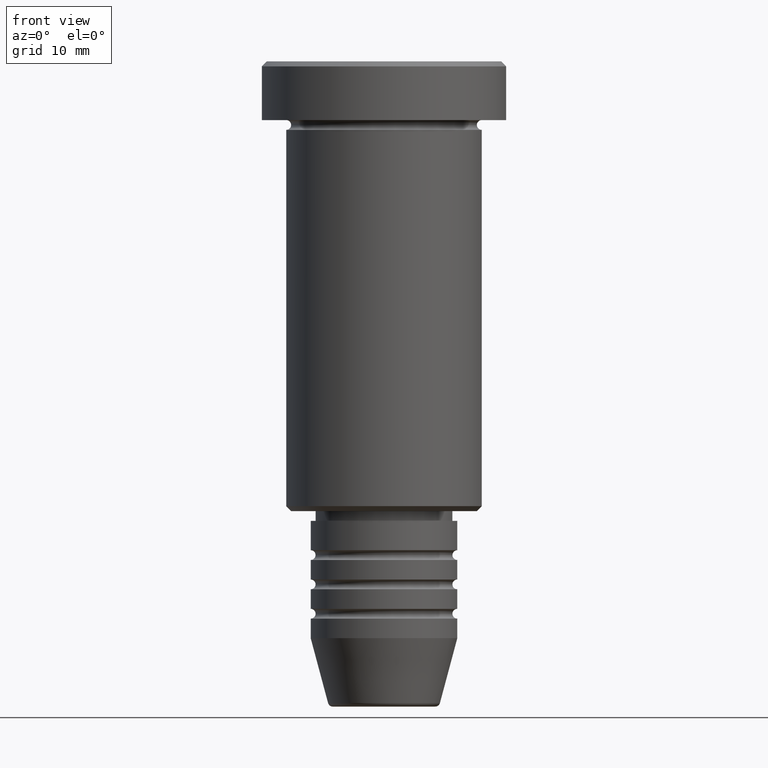
[diagram: clean part render]
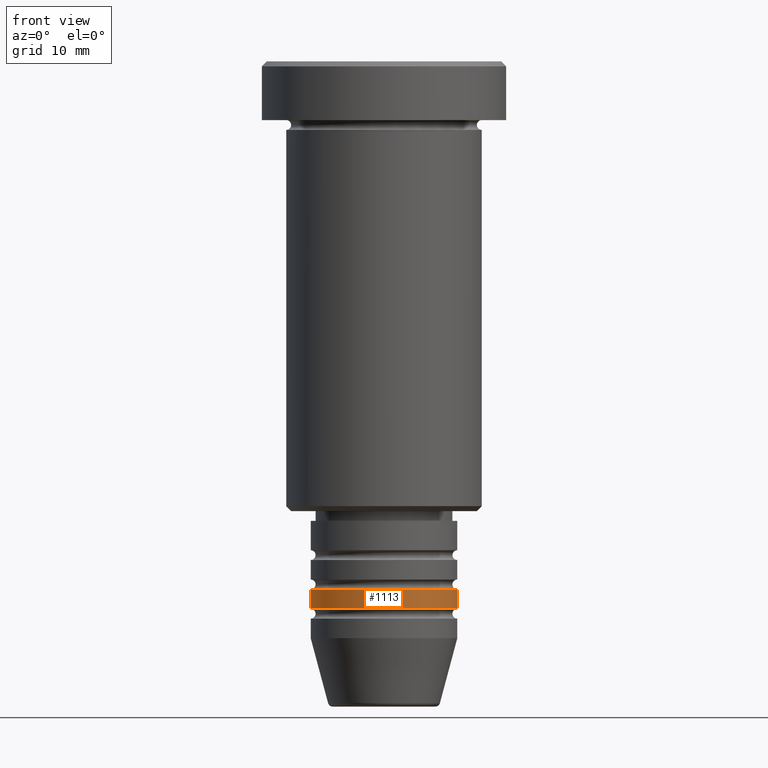
[diagram: same view with one face highlighted and labeled with its STEP entity id]
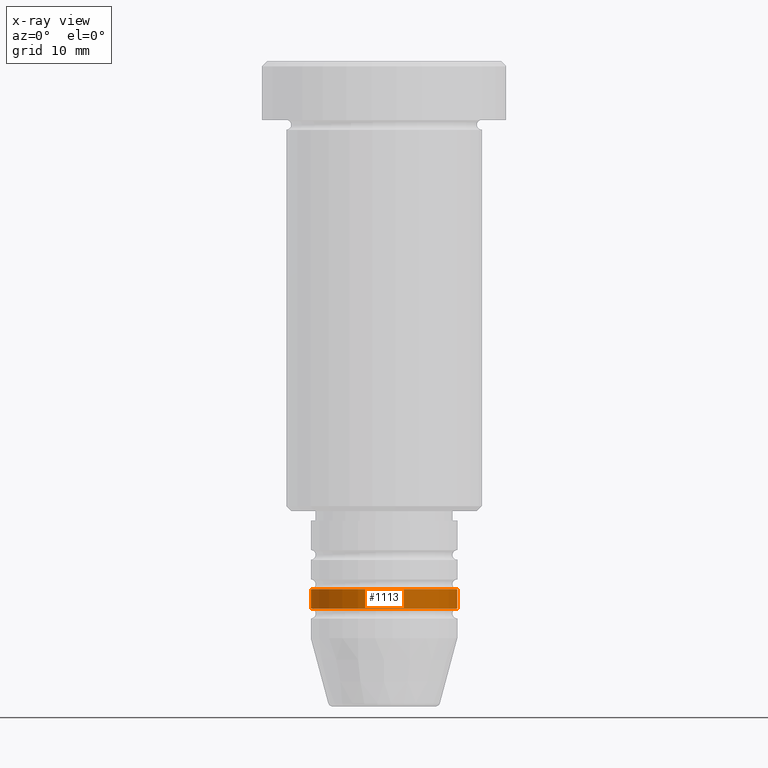
[diagram: x-ray of the same camera — body ghosted, the highlighted face saturated]
A machine part, front view. The second image highlights one B-rep face of the part: STEP entity #1113.
The next image is the same camera in x-ray: the body ghosted, the highlighted face saturated — about 0% of this face is hidden behind the body in this view.
In plain terms, the highlighted cylindrical surface (partial cylindrical patch) has radius 7.5 mm, axis along (-0, -0, 1).
Its self-contained STEP definition (entity closure, byte-faithful):
#26 = VERTEX_POINT ( 'NONE', #186 ) ;
#33 = ORIENTED_EDGE ( 'NONE', *, *, #950, .F. ) ;
#81 = AXIS2_PLACEMENT_3D ( 'NONE', #638, #1015, #666 ) ;
#106 = CARTESIAN_POINT ( 'NONE',  ( 0.000000000000000000, 0.000000000000000000, 0.000000000000000000 ) ) ;
#133 = CIRCLE ( 'NONE', #81, 7.500000000000000000 ) ;
#137 = AXIS2_PLACEMENT_3D ( 'NONE', #874, #969, #241 ) ;
#186 = CARTESIAN_POINT ( 'NONE',  ( 7.500000000000000000, 0.000000000000000000, -53.99999999999997868 ) ) ;
#189 = ORIENTED_EDGE ( 'NONE', *, *, #499, .T. ) ;
#190 = EDGE_CURVE ( 'NONE', #384, #26, #228, .T. ) ;
#228 = LINE ( 'NONE', #683, #391 ) ;
#230 = LINE ( 'NONE', #508, #661 ) ;
#241 = DIRECTION ( 'NONE',  ( 1.000000000000000000, 0.000000000000000000, 0.000000000000000000 ) ) ;
#284 = FACE_OUTER_BOUND ( 'NONE', #636, .T. ) ;
#315 = DIRECTION ( 'NONE',  ( -0.000000000000000000, -0.000000000000000000, 1.000000000000000000 ) ) ;
#351 = ORIENTED_EDGE ( 'NONE', *, *, #951, .F. ) ;
#384 = VERTEX_POINT ( 'NONE', #539 ) ;
#391 = VECTOR ( 'NONE', #315, 1000.000000000000000 ) ;
#499 = EDGE_CURVE ( 'NONE', #910, #384, #133, .T. ) ;
#508 = CARTESIAN_POINT ( 'NONE',  ( -7.500000000000000000, 9.184850993605147944E-16, 0.000000000000000000 ) ) ;
#539 = CARTESIAN_POINT ( 'NONE',  ( 7.500000000000000000, 0.000000000000000000, -55.99999999999997868 ) ) ;
#636 = EDGE_LOOP ( 'NONE', ( #33, #189, #1046, #351 ) ) ;
#638 = CARTESIAN_POINT ( 'NONE',  ( 0.000000000000000000, 0.000000000000000000, -55.99999999999997868 ) ) ;
#649 = CYLINDRICAL_SURFACE ( 'NONE', #1055, 7.500000000000000000 ) ;
#650 = VERTEX_POINT ( 'NONE', #806 ) ;
#661 = VECTOR ( 'NONE', #1160, 1000.000000000000000 ) ;
#666 = DIRECTION ( 'NONE',  ( 1.000000000000000000, 0.000000000000000000, 0.000000000000000000 ) ) ;
#683 = CARTESIAN_POINT ( 'NONE',  ( 7.500000000000000000, 0.000000000000000000, 0.000000000000000000 ) ) ;
#806 = CARTESIAN_POINT ( 'NONE',  ( -7.500000000000000000, 9.184850993605147944E-16, -53.99999999999997868 ) ) ;
#838 = DIRECTION ( 'NONE',  ( -0.000000000000000000, -0.000000000000000000, 1.000000000000000000 ) ) ;
#874 = CARTESIAN_POINT ( 'NONE',  ( 0.000000000000000000, 0.000000000000000000, -53.99999999999997868 ) ) ;
#910 = VERTEX_POINT ( 'NONE', #1135 ) ;
#950 = EDGE_CURVE ( 'NONE', #910, #650, #230, .T. ) ;
#951 = EDGE_CURVE ( 'NONE', #650, #26, #1001, .T. ) ;
#969 = DIRECTION ( 'NONE',  ( -0.000000000000000000, -0.000000000000000000, 1.000000000000000000 ) ) ;
#1001 = CIRCLE ( 'NONE', #137, 7.500000000000000000 ) ;
#1015 = DIRECTION ( 'NONE',  ( -0.000000000000000000, -0.000000000000000000, 1.000000000000000000 ) ) ;
#1024 = DIRECTION ( 'NONE',  ( 1.000000000000000000, 0.000000000000000000, 0.000000000000000000 ) ) ;
#1046 = ORIENTED_EDGE ( 'NONE', *, *, #190, .T. ) ;
#1055 = AXIS2_PLACEMENT_3D ( 'NONE', #106, #838, #1024 ) ;
#1113 = ADVANCED_FACE ( 'NONE', ( #284 ), #649, .T. ) ;
#1135 = CARTESIAN_POINT ( 'NONE',  ( -7.500000000000000000, 9.184850993605147944E-16, -55.99999999999997868 ) ) ;
#1160 = DIRECTION ( 'NONE',  ( -0.000000000000000000, -0.000000000000000000, 1.000000000000000000 ) ) ;